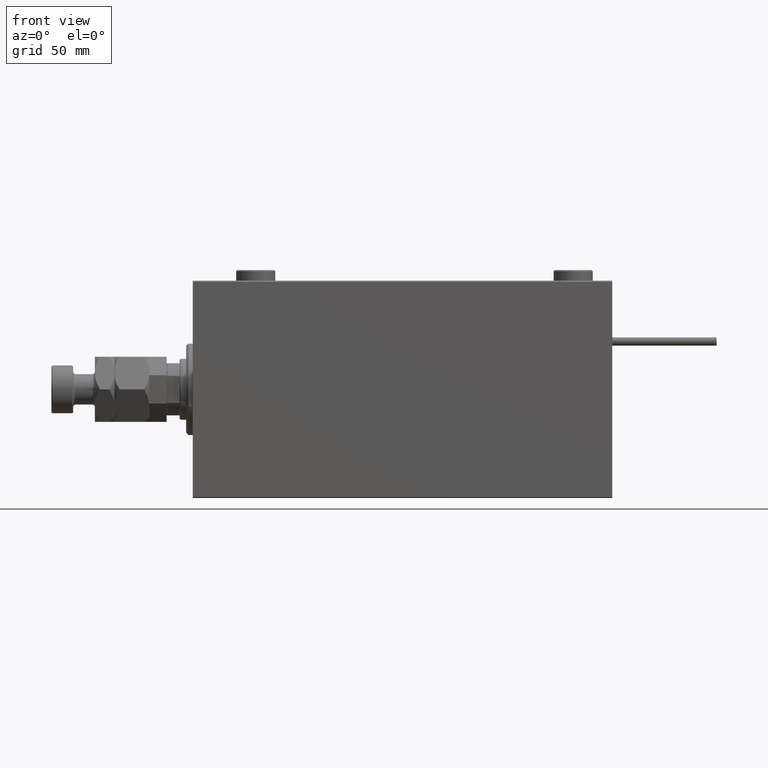
[diagram: clean part render]
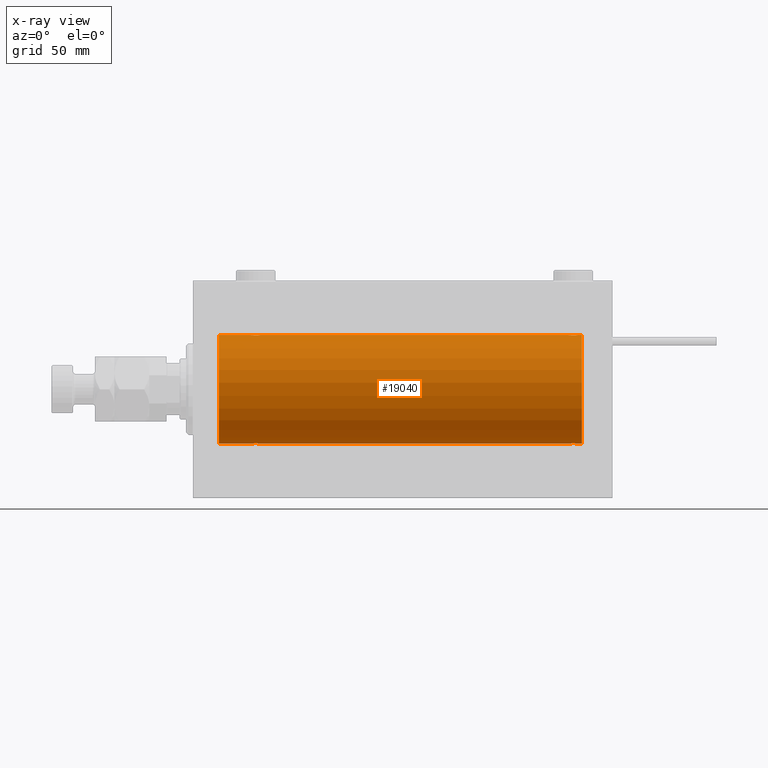
[diagram: x-ray — body ghosted, one internal face saturated and labeled with its STEP entity id]
A machine part, front view, then the same camera in x-ray: the body is ghosted and one INTERNAL B-rep face — a face not visible from any outside direction — is saturated and labeled: STEP entity #19040.
In plain terms, the highlighted cylindrical surface (partial cylindrical patch) has radius 25 mm, axis along (-1, -0, -0).
Its self-contained STEP definition (entity closure, byte-faithful):
#598 = CARTESIAN_POINT ( 'NONE',  ( 30.65121133559112820, -1.884161199660616459, 24.92916496727982434 ) ) ;
#826 = VERTEX_POINT ( 'NONE', #34253 ) ;
#859 = CARTESIAN_POINT ( 'NONE',  ( 26.82988709719076681, -1.252049606094339351, 24.96900299967627390 ) ) ;
#930 = CARTESIAN_POINT ( 'NONE',  ( 174.8367641036146551, -2.500125740978199840, -24.87467329022544504 ) ) ;
#1129 = CARTESIAN_POINT ( 'NONE',  ( 27.34616663850663443, -1.881857718844720528, 24.92933960374834967 ) ) ;
#1472 = CARTESIAN_POINT ( 'NONE',  ( 12.00000000000001066, 0.000000000000000000, 25.00000000000000000 ) ) ;
#1550 = EDGE_CURVE ( 'NONE', #46879, #49193, #46032, .T. ) ;
#1631 = DIRECTION ( 'NONE',  ( -1.000000000000000000, -0.000000000000000000, -0.000000000000000000 ) ) ;
#1722 = CARTESIAN_POINT ( 'NONE',  ( 177.4334935523975787, -0.6588655613945811895, 24.99312727339969697 ) ) ;
#1740 = B_SPLINE_CURVE_WITH_KNOTS ( 'NONE', 3,
 ( #10066, #47566, #35147, #22724, #14646, #31081, #19217, #23254, #10595, #27042, #39472, #2518, #2784, #18949, #42991, #35411, #26512, #47835, #10864, #27313, #6819, #35676, #15180, #31620, #22194, #48107, #11127, #27573, #38668, #1722, #18151, #34611 ),
 .UNSPECIFIED., .F., .F.,
 ( 4, 2, 2, 2, 2, 2, 2, 2, 2, 2, 2, 2, 2, 2, 2, 4 ),
 ( 0.007821024441662296350, 0.008309723826317906223, 0.008798423210973516095, 0.009287122595629124233, 0.009775821980284732371, 0.01026452136494034224, 0.01075322074959595212, 0.01124192013425156025, 0.01173061951890716839, 0.01221931890356277826, 0.01270801828821838814, 0.01319671767287399627, 0.01368541705752960788, 0.01417411644218521602, 0.01466281582684082589, 0.01564021459615201268 ),
 .UNSPECIFIED. ) ;
#2284 = CIRCLE ( 'NONE', #22078, 25.00000000000000000 ) ;
#2518 = CARTESIAN_POINT ( 'NONE',  ( 173.7461680457549846, -2.169003991399866216, 24.90589728951138682 ) ) ;
#2784 = CARTESIAN_POINT ( 'NONE',  ( 173.8896320349113864, -2.245863995402900049, 24.89899750494197050 ) ) ;
#2980 = VERTEX_POINT ( 'NONE', #39081 ) ;
#3101 = VECTOR ( 'NONE', #24328, 1000.000000000000000 ) ;
#3170 = CARTESIAN_POINT ( 'NONE',  ( 30.65383336149337623, -1.881857718844712979, -24.92933960374833902 ) ) ;
#3423 = VERTEX_POINT ( 'NONE', #1472 ) ;
#3436 = CARTESIAN_POINT ( 'NONE',  ( 31.50000000000000000, 3.061616978460586055E-15, -25.00000000000000000 ) ) ;
#3965 = CARTESIAN_POINT ( 'NONE',  ( 30.25383195424502603, -2.169003991399864439, -24.90589728951138326 ) ) ;
#4225 = CARTESIAN_POINT ( 'NONE',  ( 31.42014909220928942, -0.6480119923854199548, -24.99212088949390775 ) ) ;
#4376 = CARTESIAN_POINT ( 'NONE',  ( 29.16323589638543723, -2.500125740978196731, 24.87467329022545570 ) ) ;
#4712 = CARTESIAN_POINT ( 'NONE',  ( 176.1103679650886988, -2.245863995402892943, -24.89899750494197406 ) ) ;
#4932 = EDGE_CURVE ( 'NONE', #18435, #46719, #49750, .T. ) ;
#5166 = CARTESIAN_POINT ( 'NONE',  ( 26.57985090779071058, -0.6480119923854229524, 24.99212088949391131 ) ) ;
#5505 = CARTESIAN_POINT ( 'NONE',  ( 174.3543933385137450, -2.420689345803768155, -24.88254961038873603 ) ) ;
#5572 = CARTESIAN_POINT ( 'NONE',  ( 177.1701129028093078, -1.252049606094329581, -24.96900299967627745 ) ) ;
#6493 = CARTESIAN_POINT ( 'NONE',  ( 31.50000000000000000, -4.224067783497237755E-16, 25.00000000000000000 ) ) ;
#6562 = B_SPLINE_CURVE_WITH_KNOTS ( 'NONE', 3,
 ( #20813, #17555, #37812, #5166, #16770, #21065, #859, #38072, #29970, #1129, #34008, #50489, #13520, #45403, #49440, #46445, #12467, #4376, #33225, #49703, #29179, #45658, #8680, #25118, #598, #12986, #17285, #45922, #8947, #42932, #10270, #6493 ),
 .UNSPECIFIED., .F., .F.,
 ( 4, 2, 2, 2, 2, 2, 2, 2, 2, 2, 2, 2, 2, 2, 2, 4 ),
 ( 0.007821024441662294616, 0.008309723826317901019, 0.008798423210973509156, 0.009287122595629115560, 0.009775821980284721963, 0.01026452136494032837, 0.01075322074959593477, 0.01124192013425154291, 0.01173061951890714757, 0.01221931890356275571, 0.01270801828821836212, 0.01319671767287396852, 0.01368541705752957666, 0.01417411644218518479, 0.01466281582684079120, 0.01564021459615200574 ),
 .UNSPECIFIED. ) ;
#6819 = CARTESIAN_POINT ( 'NONE',  ( 175.8043566091631078, -2.372734907014173000, 24.88722742718433878 ) ) ;
#7796 = FACE_OUTER_BOUND ( 'NONE', #16917, .T. ) ;
#8004 = CARTESIAN_POINT ( 'NONE',  ( 31.24760251019550594, -1.106703319666880736, -24.97594585958023572 ) ) ;
#8680 = CARTESIAN_POINT ( 'NONE',  ( 30.25084023924054932, -2.170728182476720836, 24.90574631553725027 ) ) ;
#8851 = EDGE_CURVE ( 'NONE', #35930, #2980, #23526, .T. ) ;
#8947 = CARTESIAN_POINT ( 'NONE',  ( 31.24606379094067776, -1.109818057797414381, 24.97580694515543343 ) ) ;
#8976 = ORIENTED_EDGE ( 'NONE', *, *, #30560, .T. ) ;
#9014 = CARTESIAN_POINT ( 'NONE',  ( 173.7491597607594542, -2.170728182476731938, -24.90574631553725027 ) ) ;
#9057 = CARTESIAN_POINT ( 'NONE',  ( 179.0000000000000000, 0.000000000000000000, 25.00000000000000000 ) ) ;
#9444 = EDGE_CURVE ( 'NONE', #46879, #46719, #1740, .T. ) ;
#9702 = VERTEX_POINT ( 'NONE', #51557 ) ;
#9877 = CARTESIAN_POINT ( 'NONE',  ( 176.5253618224308525, -1.987446652080262943, -24.92104239223420592 ) ) ;
#10066 = CARTESIAN_POINT ( 'NONE',  ( 172.5000000000000284, -1.941505016884693205E-23, 25.00000000000000000 ) ) ;
#10270 = CARTESIAN_POINT ( 'NONE',  ( 31.50000000000000000, -0.3305063766663733360, 25.00000000000000000 ) ) ;
#10350 = VERTEX_POINT ( 'NONE', #21739 ) ;
#10595 = CARTESIAN_POINT ( 'NONE',  ( 173.1158761721353585, -1.651251241585103724, 24.94567559498349141 ) ) ;
#10774 = EDGE_CURVE ( 'NONE', #2980, #3423, #2284, .T. ) ;
#10864 = CARTESIAN_POINT ( 'NONE',  ( 175.3259657003945904, -2.484007091859763872, 24.87630842367762796 ) ) ;
#11127 = CARTESIAN_POINT ( 'NONE',  ( 176.9853803371709944, -1.528152964861297258, 24.95362559291378446 ) ) ;
#11139 = DIRECTION ( 'NONE',  ( -1.000000000000000000, -0.000000000000000000, -0.000000000000000000 ) ) ;
#11511 = CARTESIAN_POINT ( 'NONE',  ( 27.34878866440888245, -1.884161199660611574, -24.92916496727982079 ) ) ;
#11802 = B_SPLINE_CURVE_WITH_KNOTS ( 'NONE', 3,
 ( #3436, #28485, #36331, #4225, #19595, #8004, #36062, #19861, #15550, #3170, #40117, #3965, #24694, #12568, #40391, #20134, #48751, #20400, #32801, #31998, #48486, #53064, #49276, #20652, #11511, #36872, #27960, #16090, #16608, #52800, #37124, #52530 ),
 .UNSPECIFIED., .F., .F.,
 ( 4, 2, 2, 2, 2, 2, 2, 2, 2, 2, 2, 2, 2, 2, 2, 4 ),
 ( 0.007821024441662306759, 0.008309723826317914896, 0.008798423210973524769, 0.009287122595629129437, 0.009775821980284734106, 0.01026452136494033877, 0.01075322074959594344, 0.01124192013425154985, 0.01173061951890715451, 0.01221931890356275918, 0.01270801828821836385, 0.01319671767287396852, 0.01368541705752957492, 0.01417411644218518132, 0.01466281582684078599, 0.01564021459615200227 ),
 .UNSPECIFIED. ) ;
#11837 = CYLINDRICAL_SURFACE ( 'NONE', #45679, 25.00000000000000000 ) ;
#11987 = CARTESIAN_POINT ( 'NONE',  ( 179.0000000000000000, 0.000000000000000000, 25.00000000000000000 ) ) ;
#12148 = EDGE_CURVE ( 'NONE', #18037, #51142, #21406, .T. ) ;
#12467 = CARTESIAN_POINT ( 'NONE',  ( 28.83293504821940445, -2.499872792855083681, 24.87469871246083031 ) ) ;
#12568 = CARTESIAN_POINT ( 'NONE',  ( 29.80788342405805480, -2.371528299825740760, -24.88734287464370709 ) ) ;
#12883 = CARTESIAN_POINT ( 'NONE',  ( 179.0000000000000000, 0.000000000000000000, 0.000000000000000000 ) ) ;
#12986 = CARTESIAN_POINT ( 'NONE',  ( 30.88185954148647028, -1.653834020452937592, 24.94550385189585029 ) ) ;
#13059 = CARTESIAN_POINT ( 'NONE',  ( 174.1956433908370343, -2.372734907014177885, -24.88722742718433523 ) ) ;
#13395 = VECTOR ( 'NONE', #32212, 1000.000000000000000 ) ;
#13520 = CARTESIAN_POINT ( 'NONE',  ( 27.88963203491136511, -2.245863995402902269, 24.89899750494197761 ) ) ;
#13747 = CARTESIAN_POINT ( 'NONE',  ( 179.0000000000000000, 0.000000000000000000, 0.000000000000000000 ) ) ;
#14246 = CARTESIAN_POINT ( 'NONE',  ( 12.00000000000001066, 0.000000000000000000, 0.000000000000000000 ) ) ;
#14468 = CARTESIAN_POINT ( 'NONE',  ( 177.3721596940860366, -0.8058335233485425242, -24.98746277938382221 ) ) ;
#14646 = CARTESIAN_POINT ( 'NONE',  ( 172.6278403059140203, -0.8058335233485443005, 24.98746277938383287 ) ) ;
#14671 = AXIS2_PLACEMENT_3D ( 'NONE', #13747, #17519, #29936 ) ;
#15180 = CARTESIAN_POINT ( 'NONE',  ( 176.2508402392405458, -2.170728182476725276, 24.90574631553724672 ) ) ;
#15550 = CARTESIAN_POINT ( 'NONE',  ( 30.88412382786472321, -1.651251241585099061, -24.94567559498349496 ) ) ;
#16090 = CARTESIAN_POINT ( 'NONE',  ( 26.83172358506043409, -1.255214705003176112, -24.96884293994578385 ) ) ;
#16608 = CARTESIAN_POINT ( 'NONE',  ( 26.75393620905932934, -1.109818057797413493, -24.97580694515541921 ) ) ;
#16770 = CARTESIAN_POINT ( 'NONE',  ( 26.62784030591392792, -0.8058335233485491855, 24.98746277938382576 ) ) ;
#16917 = EDGE_LOOP ( 'NONE', ( #44568, #42561, #45732, #34185, #32270, #36468, #32116, #22955, #8976, #26560, #37914, #41820 ) ) ;
#17285 = CARTESIAN_POINT ( 'NONE',  ( 30.98538033717095530, -1.528152964861310359, 24.95362559291379156 ) ) ;
#17519 = DIRECTION ( 'NONE',  ( -1.000000000000000000, 0.000000000000000000, 0.000000000000000000 ) ) ;
#17555 = CARTESIAN_POINT ( 'NONE',  ( 26.50000000000000355, -0.1631750940176212028, 25.00000000000000355 ) ) ;
#17901 = CARTESIAN_POINT ( 'NONE',  ( 173.0146196628291193, -1.528152964861322793, -24.95362559291379156 ) ) ;
#18037 = VERTEX_POINT ( 'NONE', #28801 ) ;
#18071 = CARTESIAN_POINT ( 'NONE',  ( 177.5000000000000568, 3.061616978453880738E-15, -25.00000000000000000 ) ) ;
#18151 = CARTESIAN_POINT ( 'NONE',  ( 177.5000000000000568, -0.3305063766663748903, 24.99999999999999289 ) ) ;
#18435 = VERTEX_POINT ( 'NONE', #42223 ) ;
#18949 = CARTESIAN_POINT ( 'NONE',  ( 174.1921165759419523, -2.371528299825747421, 24.88734287464370709 ) ) ;
#19040 = ADVANCED_FACE ( 'NONE', ( #7796 ), #11837, .F. ) ;
#19217 = CARTESIAN_POINT ( 'NONE',  ( 172.8298870971908343, -1.252049606094326695, 24.96900299967627390 ) ) ;
#19595 = CARTESIAN_POINT ( 'NONE',  ( 31.37215969408608274, -0.8058335233485440785, -24.98746277938383997 ) ) ;
#19861 = CARTESIAN_POINT ( 'NONE',  ( 30.98749815834398547, -1.525407911884360868, -24.95379469572361941 ) ) ;
#20134 = CARTESIAN_POINT ( 'NONE',  ( 29.32947680114268962, -2.483544361357263863, -24.87635491893501083 ) ) ;
#20400 = CARTESIAN_POINT ( 'NONE',  ( 28.83676410361456988, -2.500125740978188738, -24.87467329022545570 ) ) ;
#20652 = CARTESIAN_POINT ( 'NONE',  ( 27.47743225659811017, -1.989585286700239486, -24.92087098724765326 ) ) ;
#20813 = CARTESIAN_POINT ( 'NONE',  ( 26.50000000000000355, -1.940558383798427991E-23, 25.00000000000000000 ) ) ;
#21065 = CARTESIAN_POINT ( 'NONE',  ( 26.75239748980448340, -1.106703319666886731, 24.97594585958023572 ) ) ;
#21403 = CARTESIAN_POINT ( 'NONE',  ( 173.3487886644088860, -1.884161199660627783, -24.92916496727982079 ) ) ;
#21406 = LINE ( 'NONE', #25461, #43676 ) ;
#21665 = CARTESIAN_POINT ( 'NONE',  ( 172.5000000000000284, -1.405387377138226638E-14, -25.00000000000000000 ) ) ;
#21739 = CARTESIAN_POINT ( 'NONE',  ( 172.5000000000000284, -1.405387377138226638E-14, -25.00000000000000000 ) ) ;
#21935 = CARTESIAN_POINT ( 'NONE',  ( 172.8317235850605300, -1.255214705003193432, -24.96884293994577675 ) ) ;
#21954 = VECTOR ( 'NONE', #1631, 1000.000000000000000 ) ;
#22004 = CARTESIAN_POINT ( 'NONE',  ( 176.9874981583440672, -1.525407911884359535, -24.95379469572363007 ) ) ;
#22078 = AXIS2_PLACEMENT_3D ( 'NONE', #14246, #30687, #51215 ) ;
#22194 = CARTESIAN_POINT ( 'NONE',  ( 176.6512113355912277, -1.884161199660621344, 24.92916496727982789 ) ) ;
#22549 = VECTOR ( 'NONE', #25505, 1000.000000000000000 ) ;
#22639 = EDGE_CURVE ( 'NONE', #10350, #826, #51627, .T. ) ;
#22724 = CARTESIAN_POINT ( 'NONE',  ( 172.5798509077907568, -0.6480119923854213981, 24.99212088949391131 ) ) ;
#22896 = LINE ( 'NONE', #38841, #21954 ) ;
#22955 = ORIENTED_EDGE ( 'NONE', *, *, #49879, .F. ) ;
#23254 = CARTESIAN_POINT ( 'NONE',  ( 173.0125018416560465, -1.525407911884356205, 24.95379469572361586 ) ) ;
#23526 = LINE ( 'NONE', #44315, #3101 ) ;
#24328 = DIRECTION ( 'NONE',  ( -1.000000000000000000, -0.000000000000000000, -0.000000000000000000 ) ) ;
#24694 = CARTESIAN_POINT ( 'NONE',  ( 30.11036796508863844, -2.245863995402894719, -24.89899750494197406 ) ) ;
#25118 = CARTESIAN_POINT ( 'NONE',  ( 30.52256774340189338, -1.989585286700246813, 24.92087098724766037 ) ) ;
#25279 = EDGE_CURVE ( 'NONE', #51142, #10350, #32028, .T. ) ;
#25461 = CARTESIAN_POINT ( 'NONE',  ( 179.0000000000000000, 3.061616997868382254E-15, -25.00000000000000000 ) ) ;
#25505 = DIRECTION ( 'NONE',  ( -1.000000000000000000, -0.000000000000000000, -0.000000000000000000 ) ) ;
#25723 = CARTESIAN_POINT ( 'NONE',  ( 172.5665064476025066, -0.6588655613945925138, -24.99312727339970408 ) ) ;
#26321 = CARTESIAN_POINT ( 'NONE',  ( 176.2538319542450722, -2.169003991399872433, -24.90589728951138326 ) ) ;
#26512 = CARTESIAN_POINT ( 'NONE',  ( 174.8329350482194116, -2.499872792855079240, 24.87469871246083031 ) ) ;
#26560 = ORIENTED_EDGE ( 'NONE', *, *, #1550, .F. ) ;
#27042 = CARTESIAN_POINT ( 'NONE',  ( 173.3461666385066451, -1.881857718844717642, 24.92933960374833546 ) ) ;
#27313 = CARTESIAN_POINT ( 'NONE',  ( 175.6456066614863403, -2.420689345803761938, 24.88254961038872892 ) ) ;
#27573 = CARTESIAN_POINT ( 'NONE',  ( 177.1682764149396121, -1.255214705003166564, 24.96884293994578385 ) ) ;
#27960 = CARTESIAN_POINT ( 'NONE',  ( 27.01461966282905891, -1.528152964861305696, -24.95362559291378801 ) ) ;
#28485 = CARTESIAN_POINT ( 'NONE',  ( 31.49999999999998579, -0.1631750940176181774, -25.00000000000000355 ) ) ;
#28547 = DIRECTION ( 'NONE',  ( -1.000000000000000000, -0.000000000000000000, -0.000000000000000000 ) ) ;
#28801 = CARTESIAN_POINT ( 'NONE',  ( 179.0000000000000000, 3.061616997868382254E-15, -25.00000000000000000 ) ) ;
#29179 = CARTESIAN_POINT ( 'NONE',  ( 29.80435660916302609, -2.372734907014173888, 24.88722742718433878 ) ) ;
#29332 = DIRECTION ( 'NONE',  ( 0.000000000000000000, 0.000000000000000000, 1.000000000000000000 ) ) ;
#29507 = CARTESIAN_POINT ( 'NONE',  ( 175.8078834240581614, -2.371528299825743868, -24.88734287464371420 ) ) ;
#29630 = CARTESIAN_POINT ( 'NONE',  ( 177.5000000000000568, 1.404322005998729010E-15, 25.00000000000000000 ) ) ;
#29774 = CARTESIAN_POINT ( 'NONE',  ( 175.1670649517807306, -2.499872792855085013, -24.87469871246083031 ) ) ;
#29936 = DIRECTION ( 'NONE',  ( 0.000000000000000000, 0.000000000000000000, 1.000000000000000000 ) ) ;
#29970 = CARTESIAN_POINT ( 'NONE',  ( 27.11587617213528745, -1.651251241585106166, 24.94567559498348430 ) ) ;
#30039 = CARTESIAN_POINT ( 'NONE',  ( 173.1181404585136079, -1.653834020452949805, -24.94550385189584674 ) ) ;
#30299 = CARTESIAN_POINT ( 'NONE',  ( 172.7539362090593897, -1.109818057797422375, -24.97580694515542632 ) ) ;
#30560 = EDGE_CURVE ( 'NONE', #9702, #49193, #6562, .T. ) ;
#30561 = CARTESIAN_POINT ( 'NONE',  ( 173.4774322565981777, -1.989585286700259248, -24.92087098724765681 ) ) ;
#30687 = DIRECTION ( 'NONE',  ( -1.000000000000000000, 0.000000000000000000, 0.000000000000000000 ) ) ;
#31081 = CARTESIAN_POINT ( 'NONE',  ( 172.7523974898044798, -1.106703319666880958, 24.97594585958023217 ) ) ;
#31620 = CARTESIAN_POINT ( 'NONE',  ( 176.5225677434019076, -1.989585286700252809, 24.92087098724766747 ) ) ;
#31998 = CARTESIAN_POINT ( 'NONE',  ( 28.35439333851368104, -2.420689345803754833, -24.88254961038873248 ) ) ;
#32028 = B_SPLINE_CURVE_WITH_KNOTS ( 'NONE', 3,
 ( #46581, #43065, #42540, #39023, #14468, #39283, #5572, #22004, #46850, #35228, #9877, #26321, #4712, #29507, #45988, #46256, #29774, #930, #42735, #5505, #13059, #38676, #9014, #30561, #21403, #30039, #17901, #21935, #30299, #25723, #46515, #21665 ),
 .UNSPECIFIED., .F., .F.,
 ( 4, 2, 2, 2, 2, 2, 2, 2, 2, 2, 2, 2, 2, 2, 2, 4 ),
 ( 0.007821024441662285942, 0.008309723826317894080, 0.008798423210973503952, 0.009287122595629112090, 0.009775821980284720228, 0.01026452136494033010, 0.01075322074959593824, 0.01124192013425154638, 0.01173061951890715451, 0.01221931890356276265, 0.01270801828821837426, 0.01319671767287398240, 0.01368541705752959053, 0.01417411644218519867, 0.01466281582684080681, 0.01564021459615199186 ),
 .UNSPECIFIED. ) ;
#32116 = ORIENTED_EDGE ( 'NONE', *, *, #10774, .T. ) ;
#32212 = DIRECTION ( 'NONE',  ( -1.000000000000000000, -0.000000000000000000, -0.000000000000000000 ) ) ;
#32270 = ORIENTED_EDGE ( 'NONE', *, *, #38243, .T. ) ;
#32801 = CARTESIAN_POINT ( 'NONE',  ( 28.67403429960540251, -2.484007091859758098, -24.87630842367763151 ) ) ;
#32976 = EDGE_CURVE ( 'NONE', #18037, #18435, #37059, .T. ) ;
#33225 = CARTESIAN_POINT ( 'NONE',  ( 29.32596570039460104, -2.484007091859765204, 24.87630842367763506 ) ) ;
#33559 = DIRECTION ( 'NONE',  ( -1.000000000000000000, -0.000000000000000000, -0.000000000000000000 ) ) ;
#34008 = CARTESIAN_POINT ( 'NONE',  ( 27.47463817756919724, -1.987446652080264275, 24.92104239223420592 ) ) ;
#34185 = ORIENTED_EDGE ( 'NONE', *, *, #22639, .T. ) ;
#34253 = CARTESIAN_POINT ( 'NONE',  ( 31.50000000000000000, 3.061616978460586055E-15, -25.00000000000000000 ) ) ;
#34477 = VECTOR ( 'NONE', #11139, 1000.000000000000000 ) ;
#34611 = CARTESIAN_POINT ( 'NONE',  ( 177.5000000000000568, 1.404322005998729010E-15, 25.00000000000000000 ) ) ;
#35147 = CARTESIAN_POINT ( 'NONE',  ( 172.5158215994234752, -0.3254210271412208977, 24.99840249400844527 ) ) ;
#35161 = CARTESIAN_POINT ( 'NONE',  ( 179.0000000000000000, 3.061616997868382254E-15, -25.00000000000000000 ) ) ;
#35228 = CARTESIAN_POINT ( 'NONE',  ( 176.6538333614934402, -1.881857718844723415, -24.92933960374834257 ) ) ;
#35411 = CARTESIAN_POINT ( 'NONE',  ( 174.6705231988573530, -2.483544361357268304, 24.87635491893501793 ) ) ;
#35676 = CARTESIAN_POINT ( 'NONE',  ( 176.1072384583841028, -2.247417070759893942, 24.89885693081946627 ) ) ;
#35930 = VERTEX_POINT ( 'NONE', #48503 ) ;
#36062 = CARTESIAN_POINT ( 'NONE',  ( 31.17011290280924385, -1.252049606094333800, -24.96900299967627390 ) ) ;
#36331 = CARTESIAN_POINT ( 'NONE',  ( 31.48417840057656747, -0.3254210271412201205, -24.99840249400844527 ) ) ;
#36468 = ORIENTED_EDGE ( 'NONE', *, *, #8851, .T. ) ;
#36872 = CARTESIAN_POINT ( 'NONE',  ( 27.11814045851354749, -1.653834020452933373, -24.94550385189585739 ) ) ;
#37059 = CIRCLE ( 'NONE', #14671, 25.00000000000000000 ) ;
#37124 = CARTESIAN_POINT ( 'NONE',  ( 26.50000000000000000, -0.3305063766663753899, -24.99999999999999645 ) ) ;
#37812 = CARTESIAN_POINT ( 'NONE',  ( 26.51582159942343253, -0.3254210271412225075, 24.99840249400844527 ) ) ;
#37914 = ORIENTED_EDGE ( 'NONE', *, *, #9444, .T. ) ;
#38072 = CARTESIAN_POINT ( 'NONE',  ( 27.01250184165601809, -1.525407911884366863, 24.95379469572362297 ) ) ;
#38243 = EDGE_CURVE ( 'NONE', #826, #35930, #11802, .T. ) ;
#38668 = CARTESIAN_POINT ( 'NONE',  ( 177.2460637909407524, -1.109818057797409718, 24.97580694515542632 ) ) ;
#38676 = CARTESIAN_POINT ( 'NONE',  ( 173.8927615416159540, -2.247417070759900604, -24.89885693081946627 ) ) ;
#38841 = CARTESIAN_POINT ( 'NONE',  ( 179.0000000000000000, 0.000000000000000000, 25.00000000000000000 ) ) ;
#39023 = CARTESIAN_POINT ( 'NONE',  ( 177.4201490922093285, -0.6480119923854171793, -24.99212088949391131 ) ) ;
#39081 = CARTESIAN_POINT ( 'NONE',  ( 12.00000000000001066, 3.061616997868382254E-15, -25.00000000000000000 ) ) ;
#39283 = CARTESIAN_POINT ( 'NONE',  ( 177.2476025101955486, -1.106703319666879848, -24.97594585958023572 ) ) ;
#39472 = CARTESIAN_POINT ( 'NONE',  ( 173.4746381775692612, -1.987446652080256948, 24.92104239223420592 ) ) ;
#40117 = CARTESIAN_POINT ( 'NONE',  ( 30.52536182243081342, -1.987446652080257392, -24.92104239223420592 ) ) ;
#40391 = CARTESIAN_POINT ( 'NONE',  ( 29.64904390169096970, -2.419770561643903584, -24.88263927071751525 ) ) ;
#41820 = ORIENTED_EDGE ( 'NONE', *, *, #4932, .F. ) ;
#42223 = CARTESIAN_POINT ( 'NONE',  ( 179.0000000000000000, 0.000000000000000000, 25.00000000000000000 ) ) ;
#42540 = CARTESIAN_POINT ( 'NONE',  ( 177.4841784005766101, -0.3254210271412171229, -24.99840249400844527 ) ) ;
#42561 = ORIENTED_EDGE ( 'NONE', *, *, #12148, .T. ) ;
#42563 = CARTESIAN_POINT ( 'NONE',  ( 31.50000000000000000, -4.224067783497237755E-16, 25.00000000000000000 ) ) ;
#42735 = CARTESIAN_POINT ( 'NONE',  ( 174.6740342996054380, -2.484007091859770089, -24.87630842367762796 ) ) ;
#42932 = CARTESIAN_POINT ( 'NONE',  ( 31.43349355239748277, -0.6588655613945849643, 24.99312727339970053 ) ) ;
#42991 = CARTESIAN_POINT ( 'NONE',  ( 174.3509560983091262, -2.419770561643906248, 24.88263927071751169 ) ) ;
#43065 = CARTESIAN_POINT ( 'NONE',  ( 177.5000000000000568, -0.1631750940176158182, -25.00000000000000000 ) ) ;
#43676 = VECTOR ( 'NONE', #33559, 1000.000000000000000 ) ;
#44315 = CARTESIAN_POINT ( 'NONE',  ( 179.0000000000000000, 3.061616997868382254E-15, -25.00000000000000000 ) ) ;
#44568 = ORIENTED_EDGE ( 'NONE', *, *, #32976, .F. ) ;
#44999 = CARTESIAN_POINT ( 'NONE',  ( 172.5000000000000284, -1.941505016884693205E-23, 25.00000000000000000 ) ) ;
#45403 = CARTESIAN_POINT ( 'NONE',  ( 28.19211657594193809, -2.371528299825748753, 24.88734287464370709 ) ) ;
#45658 = CARTESIAN_POINT ( 'NONE',  ( 30.10723845838410639, -2.247417070759895719, 24.89885693081946272 ) ) ;
#45679 = AXIS2_PLACEMENT_3D ( 'NONE', #12883, #28547, #29332 ) ;
#45732 = ORIENTED_EDGE ( 'NONE', *, *, #25279, .T. ) ;
#45922 = CARTESIAN_POINT ( 'NONE',  ( 31.16827641493957302, -1.255214705003178777, 24.96884293994577675 ) ) ;
#45988 = CARTESIAN_POINT ( 'NONE',  ( 175.6490439016911012, -2.419770561643905804, -24.88263927071751525 ) ) ;
#46032 = LINE ( 'NONE', #9057, #22549 ) ;
#46256 = CARTESIAN_POINT ( 'NONE',  ( 175.3294768011428175, -2.483544361357270969, -24.87635491893502149 ) ) ;
#46445 = CARTESIAN_POINT ( 'NONE',  ( 28.67052319885731393, -2.483544361357271413, 24.87635491893501793 ) ) ;
#46515 = CARTESIAN_POINT ( 'NONE',  ( 172.5000000000000853, -0.3305063766663885461, -25.00000000000001066 ) ) ;
#46581 = CARTESIAN_POINT ( 'NONE',  ( 177.5000000000000568, 3.061616978453880738E-15, -25.00000000000000000 ) ) ;
#46719 = VERTEX_POINT ( 'NONE', #29630 ) ;
#46850 = CARTESIAN_POINT ( 'NONE',  ( 176.8841238278647552, -1.651251241585108165, -24.94567559498349141 ) ) ;
#46879 = VERTEX_POINT ( 'NONE', #44999 ) ;
#47566 = CARTESIAN_POINT ( 'NONE',  ( 172.5000000000000853, -0.1631750940176186493, 25.00000000000001066 ) ) ;
#47835 = CARTESIAN_POINT ( 'NONE',  ( 175.1632358963854585, -2.500125740978193178, 24.87467329022544504 ) ) ;
#48107 = CARTESIAN_POINT ( 'NONE',  ( 176.8818595414865058, -1.653834020452942477, 24.94550385189585029 ) ) ;
#48486 = CARTESIAN_POINT ( 'NONE',  ( 28.19564339083698457, -2.372734907014167227, -24.88722742718433878 ) ) ;
#48503 = CARTESIAN_POINT ( 'NONE',  ( 26.50000000000000355, -1.044046902370982825E-15, -25.00000000000000000 ) ) ;
#48751 = CARTESIAN_POINT ( 'NONE',  ( 29.16706495178059910, -2.499872792855075687, -24.87469871246082320 ) ) ;
#49193 = VERTEX_POINT ( 'NONE', #42563 ) ;
#49276 = CARTESIAN_POINT ( 'NONE',  ( 27.74915976075944712, -2.170728182476712842, -24.90574631553725027 ) ) ;
#49440 = CARTESIAN_POINT ( 'NONE',  ( 28.35095609830903740, -2.419770561643910689, 24.88263927071751169 ) ) ;
#49703 = CARTESIAN_POINT ( 'NONE',  ( 29.64560666148631896, -2.420689345803760606, 24.88254961038873958 ) ) ;
#49750 = LINE ( 'NONE', #11987, #13395 ) ;
#49879 = EDGE_CURVE ( 'NONE', #9702, #3423, #22896, .T. ) ;
#50489 = CARTESIAN_POINT ( 'NONE',  ( 27.74616804575498463, -2.169003991399872433, 24.90589728951139392 ) ) ;
#51142 = VERTEX_POINT ( 'NONE', #18071 ) ;
#51215 = DIRECTION ( 'NONE',  ( 0.000000000000000000, 0.000000000000000000, 1.000000000000000000 ) ) ;
#51557 = CARTESIAN_POINT ( 'NONE',  ( 26.50000000000000355, -1.940558383798427991E-23, 25.00000000000000000 ) ) ;
#51627 = LINE ( 'NONE', #35161, #34477 ) ;
#52530 = CARTESIAN_POINT ( 'NONE',  ( 26.50000000000000355, -1.044046902370982825E-15, -25.00000000000000000 ) ) ;
#52800 = CARTESIAN_POINT ( 'NONE',  ( 26.56650644760252789, -0.6588655613945865186, -24.99312727339970053 ) ) ;
#53064 = CARTESIAN_POINT ( 'NONE',  ( 27.89276154161589716, -2.247417070759890390, -24.89885693081946982 ) ) ;